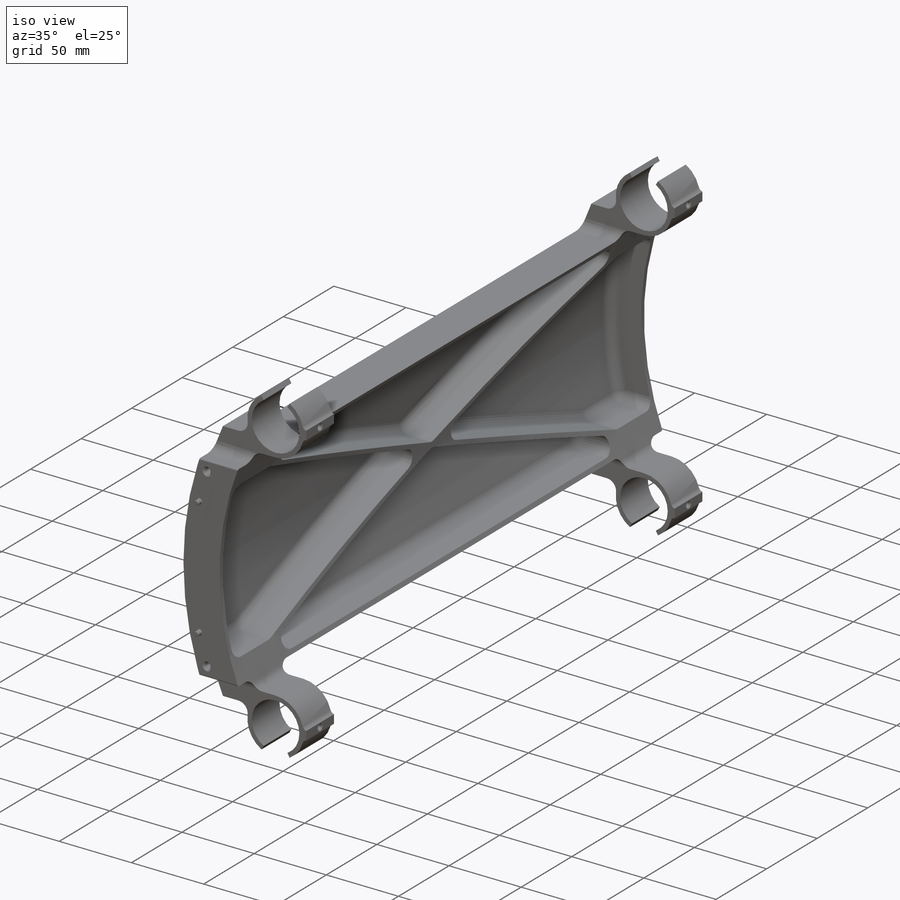
[diagram: iso view]
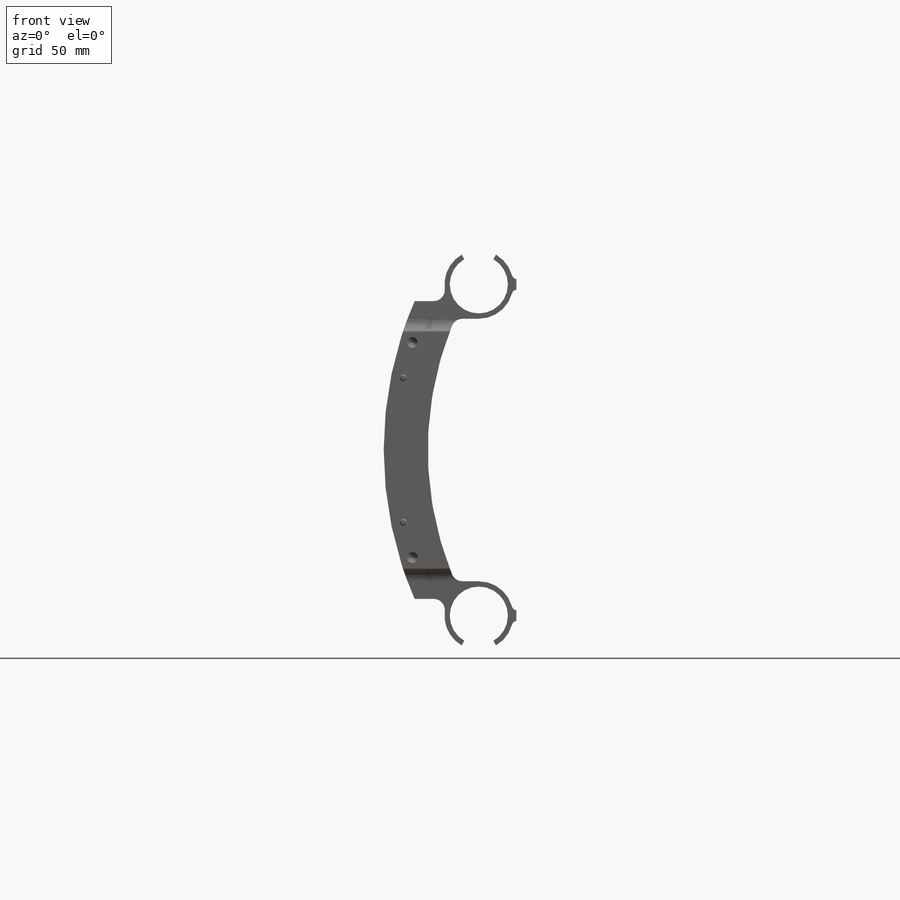
[diagram: front view]
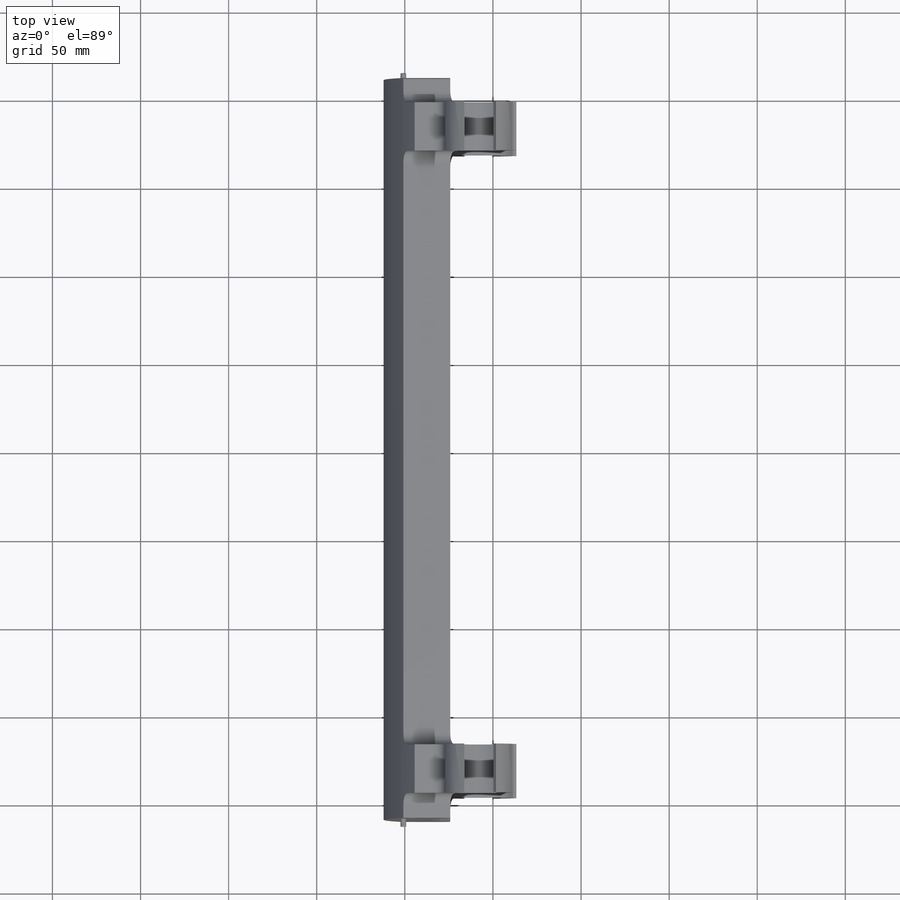
[diagram: top view]
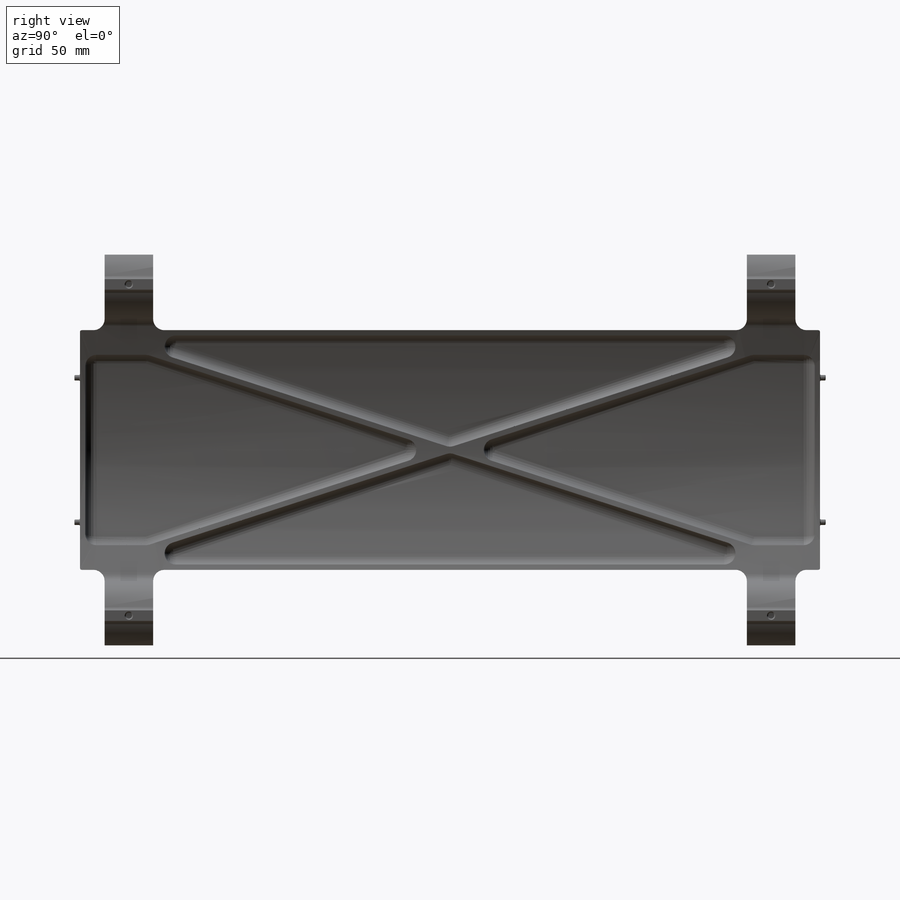
[diagram: right view]
SOLIDWORKS PART (.sldprt)
format: sldprt  version: not decoded by parser v0  size: 940,544 bytes
history: native  units: mm
features: sketch x14, fillet x6, mirror x6, extrude x3, hole x3, cut_extrude x2, thread x2, material x1, boolean_combine x1, plane x1 (+11 scaffold rows collapsed)
feature tree (50):
  scaffold x11  (default folders/planes/origin — collapsed)
  material  "6061-T6 (SS)"
  sketch  "Sketch1"  dims[c1.D1=430.4mm c1.D4=20.0mm c1.D5=33.0mm c1.D8=39.0mm c1.D9=424.0mm c1.D10=374.0mm c1.D2=158.0mm c1.D3=94.0mm c1.D6=~30.096129mm c2.D6=60.0deg c2.D7=~32.081861mm c3.D7=30.0deg c3.D6=10.0mm c3.D11=2.0mm c3.D12=6.0mm]
  extrude  "Boss-Extrude1"  Depth=420mm
  fillet  "Fillet1"  Radius=6.35mm
  sketch  "Sketch2"  dims[D1=68.0mm D2=14.0mm D3=27.5mm]
  cut_extrude  "Cut-Extrude1"  [1 undecoded]
  sketch  "Sketch5"  dims[c1.D2=3.0mm c1.D3=1.5mm c1.D4=1.5mm c1.D5=3.0mm c1.D1=1.5mm c2.D2=3.0mm]
  cut_extrude  "Cut-Extrude2"  Depth=3mm
  sketch  "and tap ref"  dims[D1=14.0mm D2=205.0mm]
  extrude  "Boss-Extrude2"  [1 undecoded]
  mirror  "Mirror2"
  mirror  "Mirror3"
  boolean_combine  "Combine5"
  hole  "#10-24 Tapped Hole3"  Diameter=3.7973mm Depth=14.95mm
  sketch  "3DSketch5"
  sketch  "Sketch11"  dims[hole-wizard template sketch: 46 standard entries collapsed; hole parameters above]
  thread  "Hole Thread4"  Diameter=9.65mm  [1 undecoded]
  sketch  "Sketch18"  dims[D1=41.0mm]
  sketch  "Sketch21"  dims[D1=3.175mm]
  extrude  "Boss-Extrude3"  Depth=3.175mm
  hole  "#29 (0.136) Diameter Hole1"  Diameter=3.4544mm Depth=88.25151mm
  sketch  "Sketch20"
  sketch  "Sketch19"  dims[hole-wizard template sketch: 59 standard entries collapsed; hole parameters above]
  mirror  "Mirror8"
  mirror  "Mirror9"
  fillet  "Fillet3"  Radius=6.35mm
  fillet  "Fillet2"  Radius=6.35mm
  fillet  "Fillet4"  Radius=1mm
  plane  "Plane1"
  sketch  "Sketch15"  dims[D1=~32.923456mm]
  fillet  "Fillet5"  Radius=3.175mm
  sketch  "Sketch16"
  hole  "#8-32 Tapped Hole1"  Diameter=3.4544mm Depth=10.71mm
  sketch  "3DSketch6"
  sketch  "Sketch17"  dims[hole-wizard template sketch: 46 standard entries collapsed; hole parameters above]
  thread  "Hole Thread6"  Diameter=4.858498mm  [1 undecoded]
  mirror  "Mirror10"
  mirror  "Mirror11"
  fillet  "Fillet6"  Radius=0.5mm
decode coverage: 24 of 37 modeling features carry decoded parameters
note: ~ marks probable driven/reference dimensions
note: 4 parameter values undecoded
note: suppression state not decoded; provenance and decode notes live in map.json
